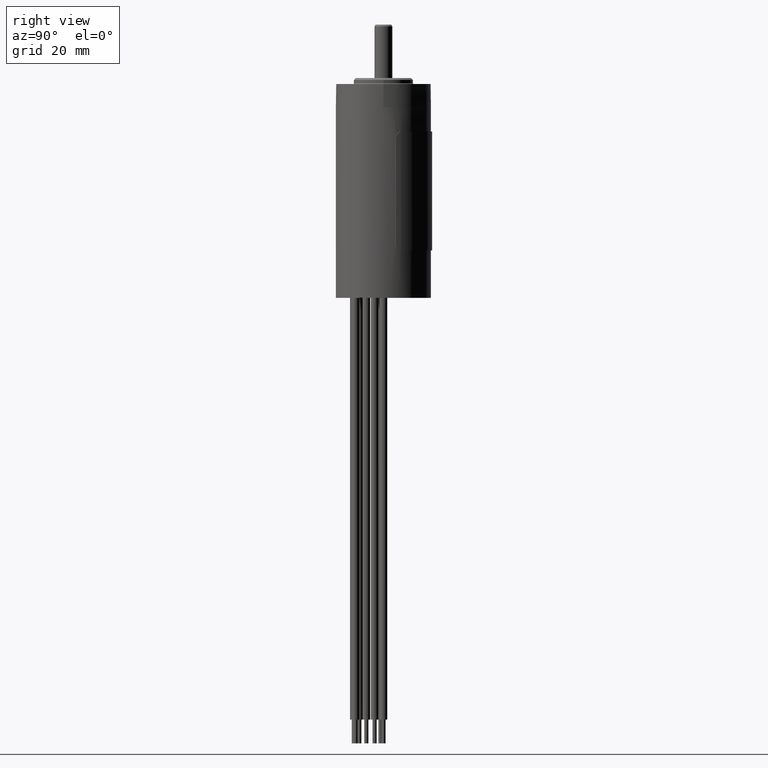
[diagram: clean part render]
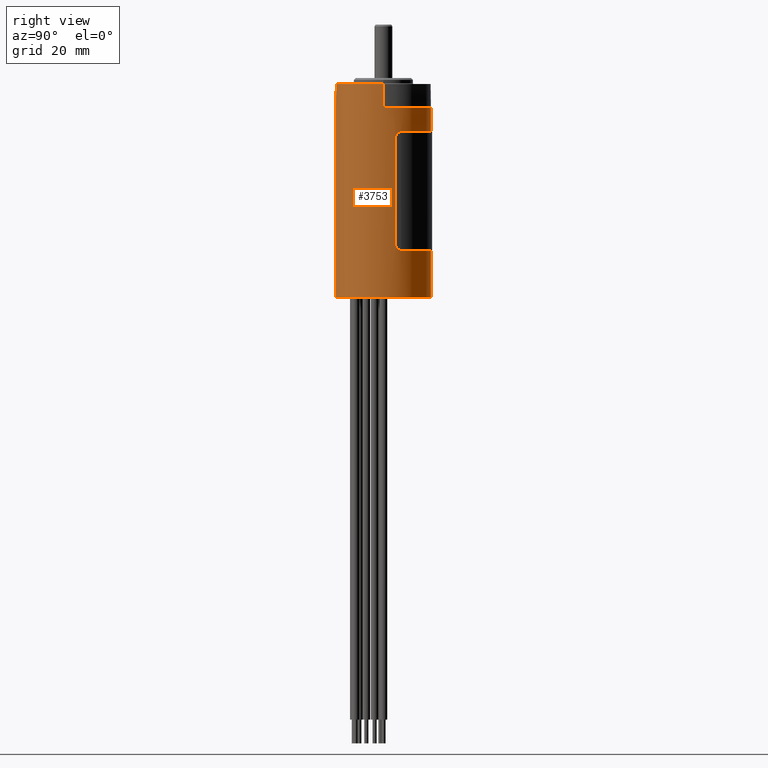
[diagram: same view with one face highlighted and labeled with its STEP entity id]
A machine part, right view. The second image highlights one B-rep face of the part: STEP entity #3753.
In plain terms, the highlighted cylindrical surface (partial cylindrical patch) has radius 8 mm, axis along (0, 0, -1).
Its self-contained STEP definition (entity closure, byte-faithful):
#32=CARTESIAN_POINT('',(0.E0,0.E0,3.5E1));
#33=DIRECTION('',(0.E0,0.E0,-1.E0));
#34=DIRECTION('',(1.E0,0.E0,0.E0));
#35=AXIS2_PLACEMENT_3D('',#32,#33,#34);
#107=CARTESIAN_POINT('',(0.E0,0.E0,3.11E1));
#108=DIRECTION('',(0.E0,0.E0,-1.E0));
#109=DIRECTION('',(0.E0,-1.E0,0.E0));
#110=AXIS2_PLACEMENT_3D('',#107,#108,#109);
#112=DIRECTION('',(0.E0,0.E0,1.E0));
#113=VECTOR('',#112,3.21E1);
#114=CARTESIAN_POINT('',(0.E0,-8.E0,-1.E0));
#115=LINE('',#114,#113);
#116=DIRECTION('',(0.E0,0.E0,1.E0));
#117=VECTOR('',#116,3.9E0);
#118=CARTESIAN_POINT('',(-8.E0,0.E0,3.11E1));
#119=LINE('',#118,#117);
#120=DIRECTION('',(0.E0,0.E0,-1.E0));
#121=VECTOR('',#120,3.9E0);
#122=CARTESIAN_POINT('',(8.E0,0.E0,3.5E1));
#123=LINE('',#122,#121);
#124=CARTESIAN_POINT('',(0.E0,0.E0,3.11E1));
#125=DIRECTION('',(0.E0,0.E0,-1.E0));
#126=DIRECTION('',(0.E0,1.E0,0.E0));
#127=AXIS2_PLACEMENT_3D('',#124,#125,#126);
#129=DIRECTION('',(0.E0,0.E0,-1.E0));
#130=VECTOR('',#129,4.1E0);
#131=CARTESIAN_POINT('',(0.E0,8.E0,3.11E1));
#132=LINE('',#131,#130);
#133=DIRECTION('',(0.E0,0.E0,-1.E0));
#134=VECTOR('',#133,8.E0);
#135=CARTESIAN_POINT('',(0.E0,8.E0,7.E0));
#136=LINE('',#135,#134);
#155=CARTESIAN_POINT('',(0.E0,0.E0,2.7E1));
#156=DIRECTION('',(0.E0,0.E0,-1.E0));
#157=DIRECTION('',(0.E0,1.E0,0.E0));
#158=AXIS2_PLACEMENT_3D('',#155,#156,#157);
#212=CARTESIAN_POINT('',(0.E0,0.E0,7.E0));
#213=DIRECTION('',(0.E0,0.E0,-1.E0));
#214=DIRECTION('',(0.E0,1.E0,0.E0));
#215=AXIS2_PLACEMENT_3D('',#212,#213,#214);
#230=CARTESIAN_POINT('',(7.407979523804E0,3.020238298205E0,7.E0));
#231=CARTESIAN_POINT('',(7.436307538955E0,2.950755913908E0,7.E0));
#232=CARTESIAN_POINT('',(7.490958386055E0,2.811027024187E0,7.016689176766E0));
#233=CARTESIAN_POINT('',(7.563342470062E0,2.609562419770E0,7.091084887742E0));
#234=CARTESIAN_POINT('',(7.623600321606E0,2.427172373053E0,7.211471301605E0));
#235=CARTESIAN_POINT('',(7.670379182589E0,2.274169835923E0,7.371381833321E0));
#236=CARTESIAN_POINT('',(7.703495449279E0,2.158530229048E0,7.563003434263E0));
#237=CARTESIAN_POINT('',(7.723080612493E0,2.086798378157E0,7.775921064987E0));
#238=CARTESIAN_POINT('',(7.727406610313E0,2.070552360820E0,7.925329971873E0));
#239=CARTESIAN_POINT('',(7.727406610313E0,2.070552360820E0,7.999999999731E0));
#254=DIRECTION('',(0.E0,0.E0,-1.E0));
#255=VECTOR('',#254,1.800000000054E1);
#256=CARTESIAN_POINT('',(7.727406610313E0,2.070552360820E0,2.600000000027E1));
#257=LINE('',#256,#255);
#266=CARTESIAN_POINT('',(7.727406610313E0,2.070552360820E0,2.600000000027E1));
#267=CARTESIAN_POINT('',(7.727406610313E0,2.070552360820E0,2.607473300081E1));
#268=CARTESIAN_POINT('',(7.723074264059E0,2.086822578639E0,2.622427932037E1));
#269=CARTESIAN_POINT('',(7.703442434748E0,2.158722831848E0,2.643746083130E1));
#270=CARTESIAN_POINT('',(7.670256755342E0,2.274587087088E0,2.662917623339E1));
#271=CARTESIAN_POINT('',(7.623429746544E0,2.427709086862E0,2.678896773124E1));
#272=CARTESIAN_POINT('',(7.563183731673E0,2.610017172488E0,2.690912254449E1));
#273=CARTESIAN_POINT('',(7.490880830060E0,2.811226729272E0,2.698333784594E1));
#274=CARTESIAN_POINT('',(7.436281551911E0,2.950819654415E0,2.7E1));
#275=CARTESIAN_POINT('',(7.407979523694E0,3.020238298465E0,2.7E1));
#295=CARTESIAN_POINT('',(0.E0,0.E0,-1.E0));
#296=DIRECTION('',(0.E0,0.E0,1.E0));
#297=DIRECTION('',(0.E0,-1.E0,0.E0));
#298=AXIS2_PLACEMENT_3D('',#295,#296,#297);
#2998=CARTESIAN_POINT('',(0.E0,-8.E0,-1.E0));
#2999=CARTESIAN_POINT('',(0.E0,8.E0,-1.E0));
#3000=VERTEX_POINT('',#2998);
#3001=VERTEX_POINT('',#2999);
#3228=CARTESIAN_POINT('',(-8.E0,0.E0,3.5E1));
#3229=CARTESIAN_POINT('',(8.E0,0.E0,3.5E1));
#3230=VERTEX_POINT('',#3228);
#3231=VERTEX_POINT('',#3229);
#3412=CARTESIAN_POINT('',(0.E0,8.E0,7.E0));
#3413=VERTEX_POINT('',#3412);
#3414=CARTESIAN_POINT('',(7.407979518784E0,3.020238310014E0,7.E0));
#3415=VERTEX_POINT('',#3414);
#3418=CARTESIAN_POINT('',(0.E0,8.E0,2.7E1));
#3419=VERTEX_POINT('',#3418);
#3420=CARTESIAN_POINT('',(7.407979518784E0,3.020238310014E0,2.7E1));
#3421=VERTEX_POINT('',#3420);
#3422=VERTEX_POINT('',#266);
#3423=CARTESIAN_POINT('',(7.727406610313E0,2.070552360820E0,7.999999999731E0));
#3424=VERTEX_POINT('',#3423);
#3509=CARTESIAN_POINT('',(0.E0,-8.E0,3.11E1));
#3510=CARTESIAN_POINT('',(-8.E0,0.E0,3.11E1));
#3511=VERTEX_POINT('',#3509);
#3512=VERTEX_POINT('',#3510);
#3513=CARTESIAN_POINT('',(0.E0,8.E0,3.11E1));
#3514=CARTESIAN_POINT('',(8.E0,0.E0,3.11E1));
#3515=VERTEX_POINT('',#3513);
#3516=VERTEX_POINT('',#3514);
#3726=CARTESIAN_POINT('',(0.E0,0.E0,2.748497715281E-2));
#3727=DIRECTION('',(0.E0,0.E0,-1.E0));
#3728=DIRECTION('',(0.E0,-1.E0,0.E0));
#3729=AXIS2_PLACEMENT_3D('',#3726,#3727,#3728);
#3730=CYLINDRICAL_SURFACE('',#3729,8.E0);
#3731=ORIENTED_EDGE('',*,*,#3707,.T.);
#3732=ORIENTED_EDGE('',*,*,#3705,.T.);
#3733=ORIENTED_EDGE('',*,*,#3703,.T.);
#3734=ORIENTED_EDGE('',*,*,#3646,.F.);
#3735=ORIENTED_EDGE('',*,*,#3700,.T.);
#3736=ORIENTED_EDGE('',*,*,#3698,.F.);
#3737=ORIENTED_EDGE('',*,*,#3696,.T.);
#3739=ORIENTED_EDGE('',*,*,#3738,.T.);
#3741=ORIENTED_EDGE('',*,*,#3740,.F.);
#3743=ORIENTED_EDGE('',*,*,#3742,.T.);
#3745=ORIENTED_EDGE('',*,*,#3744,.F.);
#3747=ORIENTED_EDGE('',*,*,#3746,.F.);
#3748=ORIENTED_EDGE('',*,*,#3711,.T.);
#3750=ORIENTED_EDGE('',*,*,#3749,.F.);
#3751=EDGE_LOOP('',(#3731,#3732,#3733,#3734,#3735,#3736,#3737,#3739,#3741,#3743,
#3745,#3747,#3748,#3750));
#3752=FACE_OUTER_BOUND('',#3751,.F.);
#3753=ADVANCED_FACE('',(#3752),#3730,.T.);
#36=CIRCLE('',#35,8.E0);
#111=CIRCLE('',#110,8.E0);
#128=CIRCLE('',#127,8.E0);
#159=CIRCLE('',#158,8.E0);
#216=CIRCLE('',#215,8.E0);
#240=B_SPLINE_CURVE_WITH_KNOTS('',3,(#230,#231,#232,#233,#234,#235,#236,#237,
#238,#239),.UNSPECIFIED.,.F.,.F.,(4,1,1,1,1,1,1,4),(0.E0,1.428571428571E-1,
2.857142857143E-1,4.285714285714E-1,5.714285714286E-1,7.142857142857E-1,
8.571428571429E-1,1.E0),.UNSPECIFIED.);
#276=B_SPLINE_CURVE_WITH_KNOTS('',3,(#266,#267,#268,#269,#270,#271,#272,#273,
#274,#275),.UNSPECIFIED.,.F.,.F.,(4,1,1,1,1,1,1,4),(0.E0,1.428571428571E-1,
2.857142857143E-1,4.285714285714E-1,5.714285714286E-1,7.142857142857E-1,
8.571428571429E-1,1.E0),.UNSPECIFIED.);
#299=CIRCLE('',#298,8.E0);
#3646=EDGE_CURVE('',#3231,#3230,#36,.T.);
#3696=EDGE_CURVE('',#3515,#3419,#132,.T.);
#3698=EDGE_CURVE('',#3515,#3516,#128,.T.);
#3700=EDGE_CURVE('',#3231,#3516,#123,.T.);
#3703=EDGE_CURVE('',#3512,#3230,#119,.T.);
#3705=EDGE_CURVE('',#3511,#3512,#111,.T.);
#3707=EDGE_CURVE('',#3000,#3511,#115,.T.);
#3711=EDGE_CURVE('',#3413,#3001,#136,.T.);
#3738=EDGE_CURVE('',#3419,#3421,#159,.T.);
#3740=EDGE_CURVE('',#3422,#3421,#276,.T.);
#3742=EDGE_CURVE('',#3422,#3424,#257,.T.);
#3744=EDGE_CURVE('',#3415,#3424,#240,.T.);
#3746=EDGE_CURVE('',#3413,#3415,#216,.T.);
#3749=EDGE_CURVE('',#3000,#3001,#299,.T.);